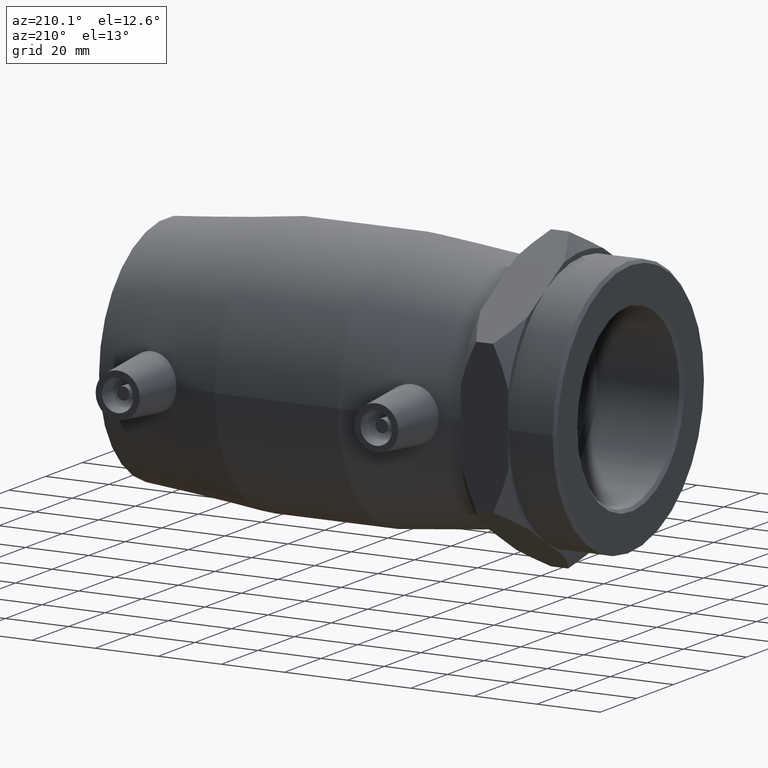
[diagram: clean part render]
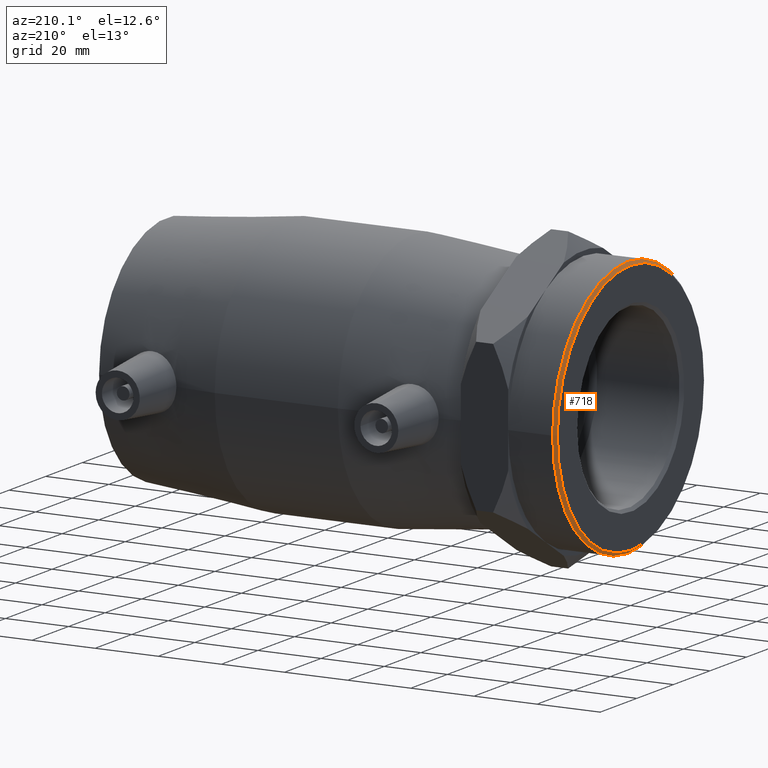
[diagram: same view with one face highlighted and labeled with its STEP entity id]
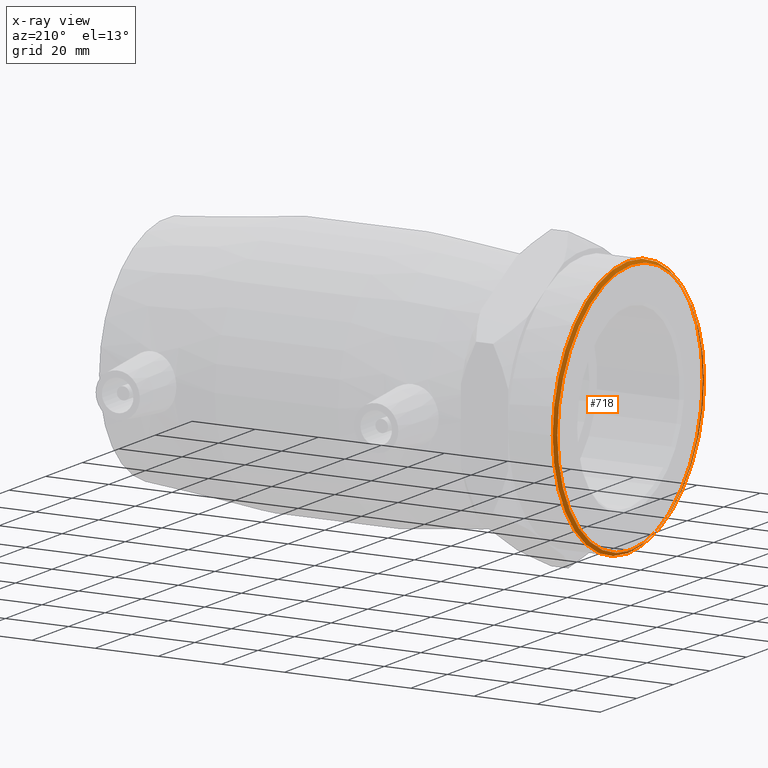
[diagram: x-ray of the same camera — body ghosted, the highlighted face saturated]
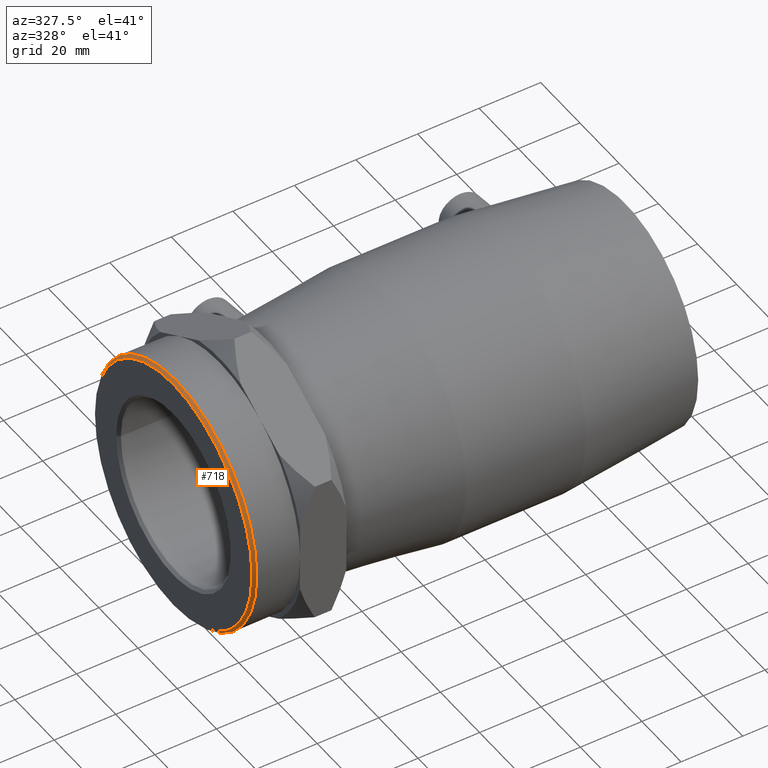
[diagram: same view with one face highlighted and labeled with its STEP entity id]
A machine part, auxiliary view. The second image highlights one B-rep face of the part: STEP entity #718.
The next image is the same camera in x-ray: the body ghosted, the highlighted face saturated — about 0% of this face is hidden behind the body in this view.
A second angle (auxiliary view) of the same face is appended — the face is thin or edge-on in the first view.
In plain terms, the highlighted conical surface has half-angle 45 deg.
Its self-contained STEP definition (entity closure, byte-faithful):
#129=FACE_BOUND('',#220,.T.);
#159=FACE_OUTER_BOUND('',#219,.T.);
#219=EDGE_LOOP('',(#514));
#220=EDGE_LOOP('',(#515));
#297=CIRCLE('',#779,40.055);
#299=CIRCLE('',#783,41.);
#342=VERTEX_POINT('',#1109);
#344=VERTEX_POINT('',#1115);
#413=EDGE_CURVE('',#342,#342,#297,.T.);
#415=EDGE_CURVE('',#344,#344,#299,.T.);
#514=ORIENTED_EDGE('',*,*,#413,.T.);
#515=ORIENTED_EDGE('',*,*,#415,.T.);
#694=CONICAL_SURFACE('',#782,40.5275,45.);
#718=ADVANCED_FACE('',(#159,#129),#694,.T.);
#779=AXIS2_PLACEMENT_3D('',#1110,#891,#892);
#782=AXIS2_PLACEMENT_3D('',#1114,#897,#898);
#783=AXIS2_PLACEMENT_3D('',#1116,#899,#900);
#891=DIRECTION('center_axis',(1.,0.,0.));
#892=DIRECTION('ref_axis',(0.,-1.,0.));
#897=DIRECTION('center_axis',(1.,0.,0.));
#898=DIRECTION('ref_axis',(0.,-1.,0.));
#899=DIRECTION('center_axis',(-1.,0.,0.));
#900=DIRECTION('ref_axis',(0.,-1.,0.));
#1109=CARTESIAN_POINT('',(-88.5,40.055,4.90532275398472E-15));
#1110=CARTESIAN_POINT('Origin',(-88.5,0.,0.));
#1114=CARTESIAN_POINT('Origin',(-88.0275,0.,0.));
#1115=CARTESIAN_POINT('',(-87.555,41.,-5.02105187650415E-15));
#1116=CARTESIAN_POINT('Origin',(-87.555,0.,0.));